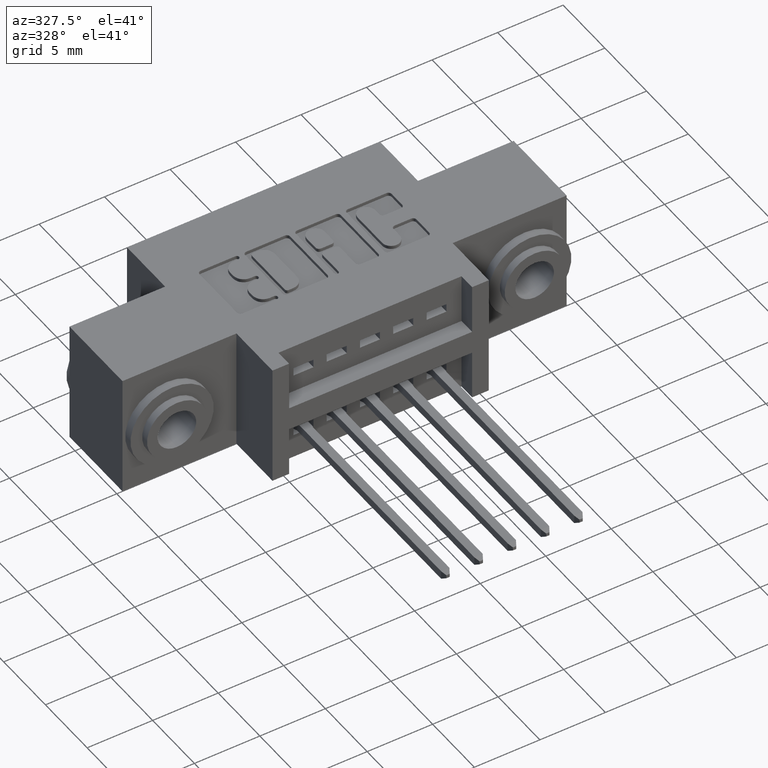
[diagram: clean part render]
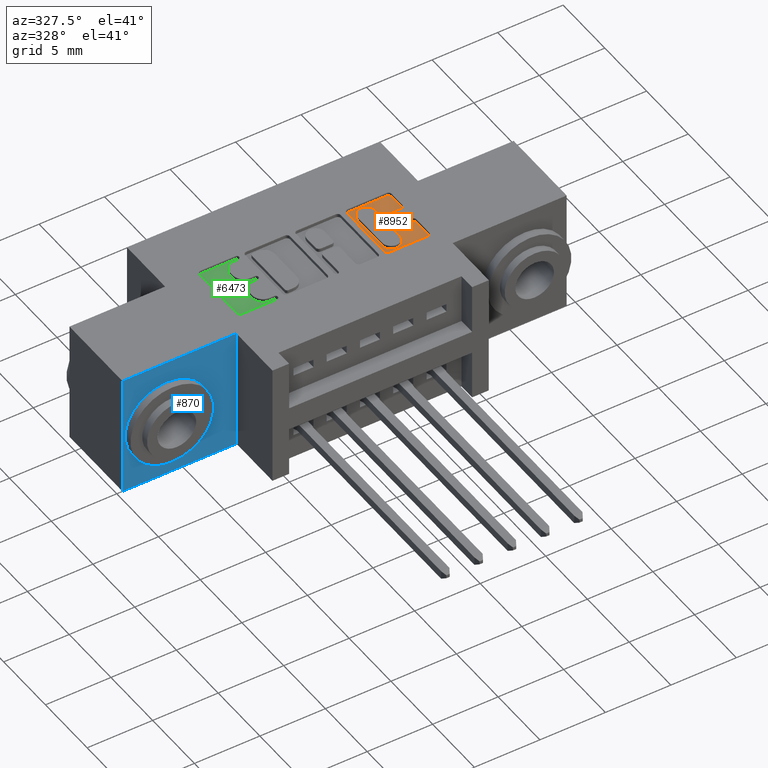
[diagram: same view with three faces highlighted in distinct colors, each labeled with its STEP entity id]
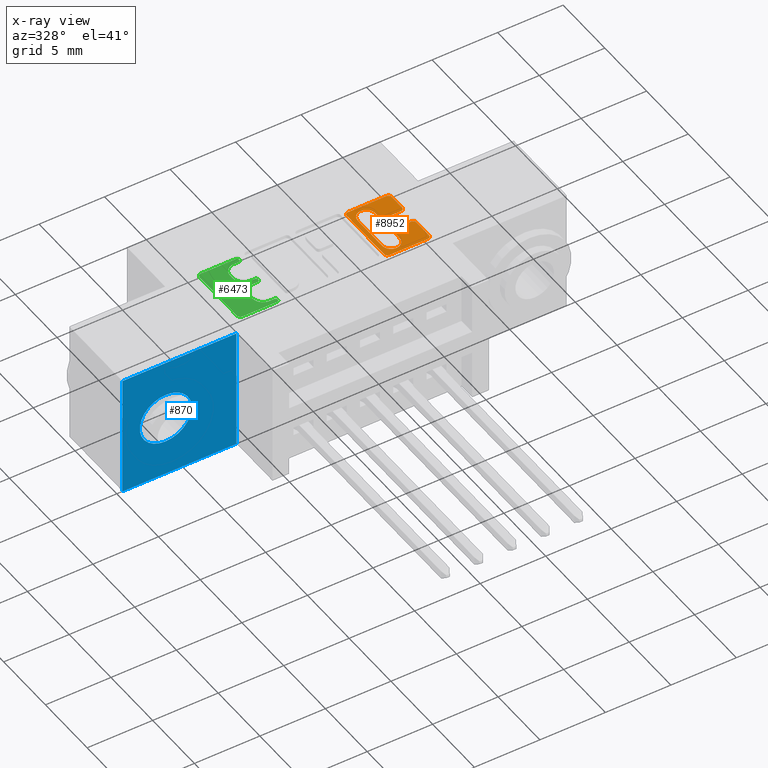
[diagram: x-ray of the same camera — body ghosted, the three highlighted faces saturated]
A machine part, auxiliary view with three faces highlighted in distinct colors.
The next image is the same camera in x-ray (body ghosted, the three faces saturated) — at least one of them is partly hidden behind the body in this view.
Their STEP definitions:

[orange] entity #8952 — the highlighted planar face has unit normal (0, 0, 1).
#35 = VERTEX_POINT ( 'NONE', #166 ) ;
#166 = CARTESIAN_POINT ( 'NONE',  ( 0.9641786319099718800, 0.4133410318341942400, -0.01000000000000000000 ) ) ;
#178 = VERTEX_POINT ( 'NONE', #8386 ) ;
#368 = VECTOR ( 'NONE', #8783, 39.37007874015748100 ) ;
#386 = LINE ( 'NONE', #1317, #841 ) ;
#470 = CARTESIAN_POINT ( 'NONE',  ( 0.0000000000000000000, 0.2268432979619826000, -0.01000000000000000000 ) ) ;
#510 = ORIENTED_EDGE ( 'NONE', *, *, #5298, .F. ) ;
#579 = CARTESIAN_POINT ( 'NONE',  ( 0.9543629617061341100, 0.2366589681657893500, -0.01000000000000000000 ) ) ;
#596 = VERTEX_POINT ( 'NONE', #1628 ) ;
#604 = ORIENTED_EDGE ( 'NONE', *, *, #3182, .T. ) ;
#606 = ORIENTED_EDGE ( 'NONE', *, *, #4198, .T. ) ;
#618 = LINE ( 'NONE', #5213, #4316 ) ;
#698 = CARTESIAN_POINT ( 'NONE',  ( 0.8287223830974583800, 0.2366589681657893500, -0.01000000000000000000 ) ) ;
#790 = DIRECTION ( 'NONE',  ( 1.000000000000000000, 0.0000000000000000000, 0.0000000000000000000 ) ) ;
#841 = VECTOR ( 'NONE', #9435, 39.37007874015748100 ) ;
#904 = VECTOR ( 'NONE', #7022, 39.37007874015748100 ) ;
#954 = DIRECTION ( 'NONE',  ( -0.0000000000000000000, 0.0000000000000000000, 1.000000000000000000 ) ) ;
#1022 = AXIS2_PLACEMENT_3D ( 'NONE', #5051, #8631, #2039 ) ;
#1033 = EDGE_CURVE ( 'NONE', #1476, #8651, #4765, .T. ) ;
#1211 = EDGE_CURVE ( 'NONE', #2462, #5355, #4522, .T. ) ;
#1226 = CARTESIAN_POINT ( 'NONE',  ( 0.8287223830974583800, 0.0000000000000000000, -0.01000000000000000000 ) ) ;
#1309 = CARTESIAN_POINT ( 'NONE',  ( 0.8424643213828182400, 0.0000000000000000000, -0.01000000000000000000 ) ) ;
#1317 = CARTESIAN_POINT ( 'NONE',  ( 0.9641786319099399100, 0.0000000000000000000, -0.01000000000000000000 ) ) ;
#1344 = CARTESIAN_POINT ( 'NONE',  ( 0.8949781569731657400, 0.3637718973050446100, -0.01000000000000000000 ) ) ;
#1354 = AXIS2_PLACEMENT_3D ( 'NONE', #1480, #8855, #5160 ) ;
#1384 = LINE ( 'NONE', #7721, #904 ) ;
#1419 = VECTOR ( 'NONE', #4155, 39.37007874015748100 ) ;
#1476 = VERTEX_POINT ( 'NONE', #8752 ) ;
#1478 = EDGE_CURVE ( 'NONE', #6115, #4722, #1531, .T. ) ;
#1480 = CARTESIAN_POINT ( 'NONE',  ( 0.9047938271769668800, 0.2965345564089689700, -0.01000000000000000000 ) ) ;
#1508 = VECTOR ( 'NONE', #5593, 39.37007874015748100 ) ;
#1531 = LINE ( 'NONE', #1309, #368 ) ;
#1577 = ORIENTED_EDGE ( 'NONE', *, *, #1670, .T. ) ;
#1612 = DIRECTION ( 'NONE',  ( 0.0000000000000000000, -1.000000000000000000, 0.0000000000000000000 ) ) ;
#1627 = LINE ( 'NONE', #4609, #5764 ) ;
#1628 = CARTESIAN_POINT ( 'NONE',  ( 0.9641786319099399100, 0.2965345564089698100, -0.01000000000000000000 ) ) ;
#1631 = DIRECTION ( 'NONE',  ( 1.000000000000000000, 0.0000000000000000000, 0.0000000000000000000 ) ) ;
#1670 = EDGE_CURVE ( 'NONE', #4897, #5240, #4062, .T. ) ;
#1850 = VERTEX_POINT ( 'NONE', #4123 ) ;
#1907 = CARTESIAN_POINT ( 'NONE',  ( 0.9543629617061681900, 0.4231567020380504500, -0.01000000000000000000 ) ) ;
#1973 = PLANE ( 'NONE',  #9153 ) ;
#2037 = DIRECTION ( 'NONE',  ( -0.0000000000000000000, 0.0000000000000000000, 1.000000000000000000 ) ) ;
#2039 = DIRECTION ( 'NONE',  ( 1.000000000000000000, 0.0000000000000000000, 0.0000000000000000000 ) ) ;
#2060 = ORIENTED_EDGE ( 'NONE', *, *, #8715, .T. ) ;
#2070 = DIRECTION ( 'NONE',  ( -0.0000000000000000000, 0.0000000000000000000, 1.000000000000000000 ) ) ;
#2093 = EDGE_CURVE ( 'NONE', #4897, #4722, #9000, .T. ) ;
#2197 = ORIENTED_EDGE ( 'NONE', *, *, #2712, .T. ) ;
#2201 = EDGE_CURVE ( 'NONE', #7310, #35, #1627, .T. ) ;
#2262 = ORIENTED_EDGE ( 'NONE', *, *, #1478, .T. ) ;
#2419 = AXIS2_PLACEMENT_3D ( 'NONE', #8710, #6556, #9507 ) ;
#2462 = VERTEX_POINT ( 'NONE', #698 ) ;
#2623 = DIRECTION ( 'NONE',  ( -0.0000000000000000000, 0.0000000000000000000, 1.000000000000000000 ) ) ;
#2656 = EDGE_CURVE ( 'NONE', #5240, #9212, #8556, .T. ) ;
#2712 = EDGE_CURVE ( 'NONE', #7615, #6848, #5058, .T. ) ;
#2748 = CARTESIAN_POINT ( 'NONE',  ( 0.8949781569731788400, 0.2668421540424524300, -0.01000000000000000000 ) ) ;
#2847 = EDGE_CURVE ( 'NONE', #7460, #9551, #3467, .T. ) ;
#2862 = DIRECTION ( 'NONE',  ( 1.000000000000000000, 0.0000000000000000000, 0.0000000000000000000 ) ) ;
#2883 = ORIENTED_EDGE ( 'NONE', *, *, #2656, .T. ) ;
#3092 = ORIENTED_EDGE ( 'NONE', *, *, #1211, .T. ) ;
#3159 = DIRECTION ( 'NONE',  ( 1.000000000000000000, 0.0000000000000000000, 0.0000000000000000000 ) ) ;
#3182 = EDGE_CURVE ( 'NONE', #1850, #8922, #618, .T. ) ;
#3193 = DIRECTION ( 'NONE',  ( -0.0000000000000000000, 0.0000000000000000000, 1.000000000000000000 ) ) ;
#3223 = DIRECTION ( 'NONE',  ( 1.000000000000000000, 0.0000000000000000000, 0.0000000000000000000 ) ) ;
#3319 = CARTESIAN_POINT ( 'NONE',  ( 0.9543629617061669700, 0.3637718973050380600, -0.01000000000000000000 ) ) ;
#3467 = LINE ( 'NONE', #4909, #1508 ) ;
#3597 = CARTESIAN_POINT ( 'NONE',  ( 0.8287223830974583800, 0.4133410318342095000, -0.01000000000000000000 ) ) ;
#3625 = ORIENTED_EDGE ( 'NONE', *, *, #6750, .T. ) ;
#3758 = AXIS2_PLACEMENT_3D ( 'NONE', #3319, #5491, #3223 ) ;
#3800 = CARTESIAN_POINT ( 'NONE',  ( 0.8949781569731657400, 0.0000000000000000000, -0.01000000000000000000 ) ) ;
#3854 = EDGE_LOOP ( 'NONE', ( #8857, #3625, #4780, #5093, #4702, #6591, #8718, #3092, #8251, #2197, #2060, #606, #604, #7417, #5040, #510, #2262, #6317, #1577, #2883 ) ) ;
#4062 = LINE ( 'NONE', #3800, #8904 ) ;
#4115 = VECTOR ( 'NONE', #5692, 39.37007874015748100 ) ;
#4123 = CARTESIAN_POINT ( 'NONE',  ( 0.9543629617061564200, 0.3063502266127569600, -0.01000000000000000000 ) ) ;
#4155 = DIRECTION ( 'NONE',  ( 0.0000000000000000000, -1.000000000000000000, 0.0000000000000000000 ) ) ;
#4198 = EDGE_CURVE ( 'NONE', #596, #1850, #7160, .T. ) ;
#4316 = VECTOR ( 'NONE', #8128, 39.37007874015748100 ) ;
#4375 = CARTESIAN_POINT ( 'NONE',  ( 0.8424643213828182400, 0.3831578459575290000, -0.01000000000000000000 ) ) ;
#4413 = CARTESIAN_POINT ( 'NONE',  ( 0.8687212391779920400, 0.3831578459575290000, -0.01000000000000000000 ) ) ;
#4491 = AXIS2_PLACEMENT_3D ( 'NONE', #6129, #3193, #3159 ) ;
#4522 = CIRCLE ( 'NONE', #6558, 0.009815670203806754800 ) ;
#4560 = CARTESIAN_POINT ( 'NONE',  ( 0.8385380533012651800, 0.2366589681657893500, -0.01000000000000000000 ) ) ;
#4609 = CARTESIAN_POINT ( 'NONE',  ( 0.9641786319099718800, 0.0000000000000000000, -0.01000000000000000000 ) ) ;
#4682 = LINE ( 'NONE', #470, #4115 ) ;
#4702 = ORIENTED_EDGE ( 'NONE', *, *, #2847, .T. ) ;
#4722 = VERTEX_POINT ( 'NONE', #4375 ) ;
#4738 = CARTESIAN_POINT ( 'NONE',  ( 0.9047938271769668800, 0.3063502266127569600, -0.01000000000000000000 ) ) ;
#4765 = LINE ( 'NONE', #5188, #7881 ) ;
#4780 = ORIENTED_EDGE ( 'NONE', *, *, #2201, .T. ) ;
#4888 = CIRCLE ( 'NONE', #2419, 0.009815670203840084000 ) ;
#4897 = VERTEX_POINT ( 'NONE', #5739 ) ;
#4909 = CARTESIAN_POINT ( 'NONE',  ( 0.0000000000000000000, 0.4231567020380504500, -0.01000000000000000000 ) ) ;
#5040 = ORIENTED_EDGE ( 'NONE', *, *, #1033, .T. ) ;
#5051 = CARTESIAN_POINT ( 'NONE',  ( 0.9047938271769772100, 0.3637718973050446100, -0.01000000000000000000 ) ) ;
#5058 = CIRCLE ( 'NONE', #8926, 0.009815670203806345400 ) ;
#5093 = ORIENTED_EDGE ( 'NONE', *, *, #9067, .T. ) ;
#5151 = EDGE_CURVE ( 'NONE', #9212, #178, #1384, .T. ) ;
#5160 = DIRECTION ( 'NONE',  ( 1.000000000000000000, 0.0000000000000000000, 0.0000000000000000000 ) ) ;
#5188 = CARTESIAN_POINT ( 'NONE',  ( 0.8949781569731788400, 0.0000000000000000000, -0.01000000000000000000 ) ) ;
#5213 = CARTESIAN_POINT ( 'NONE',  ( 0.0000000000000000000, 0.3063502266127569600, -0.01000000000000000000 ) ) ;
#5240 = VERTEX_POINT ( 'NONE', #1344 ) ;
#5251 = CARTESIAN_POINT ( 'NONE',  ( 0.8385380533012991600, 0.4231567020380504500, -0.01000000000000000000 ) ) ;
#5298 = EDGE_CURVE ( 'NONE', #6115, #8651, #8757, .T. ) ;
#5355 = VERTEX_POINT ( 'NONE', #5626 ) ;
#5491 = DIRECTION ( 'NONE',  ( -0.0000000000000000000, 0.0000000000000000000, 1.000000000000000000 ) ) ;
#5546 = EDGE_CURVE ( 'NONE', #8922, #1476, #6419, .T. ) ;
#5593 = DIRECTION ( 'NONE',  ( -1.000000000000000000, 0.0000000000000000000, 0.0000000000000000000 ) ) ;
#5615 = EDGE_CURVE ( 'NONE', #9551, #8735, #8158, .T. ) ;
#5626 = CARTESIAN_POINT ( 'NONE',  ( 0.8385380533012651800, 0.2268432979619826000, -0.01000000000000000000 ) ) ;
#5692 = DIRECTION ( 'NONE',  ( 1.000000000000000000, 0.0000000000000000000, 0.0000000000000000000 ) ) ;
#5737 = DIRECTION ( 'NONE',  ( 1.000000000000000000, 0.0000000000000000000, 0.0000000000000000000 ) ) ;
#5739 = CARTESIAN_POINT ( 'NONE',  ( 0.8949781569731657400, 0.3831578454992593000, -0.01000000000000000000 ) ) ;
#5764 = VECTOR ( 'NONE', #6865, 39.37007874015748100 ) ;
#5780 = LINE ( 'NONE', #1226, #1419 ) ;
#6099 = DIRECTION ( 'NONE',  ( 1.000000000000000000, 0.0000000000000000000, 0.0000000000000000000 ) ) ;
#6115 = VERTEX_POINT ( 'NONE', #7506 ) ;
#6129 = CARTESIAN_POINT ( 'NONE',  ( 0.8687212391779985900, 0.2668421540424524300, -0.01000000000000000000 ) ) ;
#6317 = ORIENTED_EDGE ( 'NONE', *, *, #2093, .F. ) ;
#6321 = EDGE_CURVE ( 'NONE', #8735, #2462, #5780, .T. ) ;
#6376 = FACE_OUTER_BOUND ( 'NONE', #3854, .T. ) ;
#6391 = AXIS2_PLACEMENT_3D ( 'NONE', #7167, #2037, #5737 ) ;
#6419 = CIRCLE ( 'NONE', #1354, 0.009815670203788042300 ) ;
#6477 = CARTESIAN_POINT ( 'NONE',  ( 0.9543629617061341100, 0.2268432979619826000, -0.01000000000000000000 ) ) ;
#6556 = DIRECTION ( 'NONE',  ( -0.0000000000000000000, 0.0000000000000000000, 1.000000000000000000 ) ) ;
#6558 = AXIS2_PLACEMENT_3D ( 'NONE', #4560, #6748, #1631 ) ;
#6564 = CARTESIAN_POINT ( 'NONE',  ( 0.9641786319099718800, 0.3637718973050380600, -0.01000000000000000000 ) ) ;
#6591 = ORIENTED_EDGE ( 'NONE', *, *, #5615, .T. ) ;
#6677 = DIRECTION ( 'NONE',  ( 0.0000000000000000000, -1.000000000000000000, 0.0000000000000000000 ) ) ;
#6748 = DIRECTION ( 'NONE',  ( -0.0000000000000000000, 0.0000000000000000000, 1.000000000000000000 ) ) ;
#6750 = EDGE_CURVE ( 'NONE', #178, #7310, #7131, .T. ) ;
#6785 = CARTESIAN_POINT ( 'NONE',  ( 0.8385380533012991600, 0.4133410318342095000, -0.01000000000000000000 ) ) ;
#6848 = VERTEX_POINT ( 'NONE', #7144 ) ;
#6865 = DIRECTION ( 'NONE',  ( 0.0000000000000000000, 1.000000000000000000, -0.0000000000000000000 ) ) ;
#7016 = AXIS2_PLACEMENT_3D ( 'NONE', #4413, #9543, #790 ) ;
#7022 = DIRECTION ( 'NONE',  ( 1.000000000000000000, 0.0000000000000000000, 0.0000000000000000000 ) ) ;
#7131 = CIRCLE ( 'NONE', #3758, 0.009815670203804980100 ) ;
#7144 = CARTESIAN_POINT ( 'NONE',  ( 0.9641786319099399100, 0.2366589681657823900, -0.01000000000000000000 ) ) ;
#7156 = DIRECTION ( 'NONE',  ( 1.000000000000000000, 0.0000000000000000000, 0.0000000000000000000 ) ) ;
#7160 = CIRCLE ( 'NONE', #6391, 0.009815670203787086500 ) ;
#7167 = CARTESIAN_POINT ( 'NONE',  ( 0.9543629617061528700, 0.2965345564089698100, -0.01000000000000000000 ) ) ;
#7310 = VERTEX_POINT ( 'NONE', #6564 ) ;
#7417 = ORIENTED_EDGE ( 'NONE', *, *, #5546, .T. ) ;
#7455 = AXIS2_PLACEMENT_3D ( 'NONE', #6785, #954, #6099 ) ;
#7460 = VERTEX_POINT ( 'NONE', #1907 ) ;
#7506 = CARTESIAN_POINT ( 'NONE',  ( 0.8424643213828182400, 0.2668421540424524300, -0.01000000000000000000 ) ) ;
#7615 = VERTEX_POINT ( 'NONE', #6477 ) ;
#7721 = CARTESIAN_POINT ( 'NONE',  ( 0.0000000000000000000, 0.3539562271012330300, -0.01000000000000000000 ) ) ;
#7881 = VECTOR ( 'NONE', #6677, 39.37007874015748100 ) ;
#8128 = DIRECTION ( 'NONE',  ( -1.000000000000000000, 0.0000000000000000000, 0.0000000000000000000 ) ) ;
#8158 = CIRCLE ( 'NONE', #7455, 0.009815670203840767500 ) ;
#8222 = EDGE_CURVE ( 'NONE', #5355, #7615, #4682, .T. ) ;
#8251 = ORIENTED_EDGE ( 'NONE', *, *, #8222, .T. ) ;
#8386 = CARTESIAN_POINT ( 'NONE',  ( 0.9543629617061669700, 0.3539562271012330300, -0.01000000000000000000 ) ) ;
#8556 = CIRCLE ( 'NONE', #1022, 0.009815670203811535700 ) ;
#8631 = DIRECTION ( 'NONE',  ( -0.0000000000000000000, 0.0000000000000000000, 1.000000000000000000 ) ) ;
#8651 = VERTEX_POINT ( 'NONE', #2748 ) ;
#8710 = CARTESIAN_POINT ( 'NONE',  ( 0.9543629617061317700, 0.4133410318342103400, -0.01000000000000000000 ) ) ;
#8715 = EDGE_CURVE ( 'NONE', #6848, #596, #386, .T. ) ;
#8718 = ORIENTED_EDGE ( 'NONE', *, *, #6321, .T. ) ;
#8735 = VERTEX_POINT ( 'NONE', #3597 ) ;
#8752 = CARTESIAN_POINT ( 'NONE',  ( 0.8949781569731788400, 0.2965345564089680900, -0.01000000000000000000 ) ) ;
#8757 = CIRCLE ( 'NONE', #4491, 0.02625691779518022500 ) ;
#8783 = DIRECTION ( 'NONE',  ( 0.0000000000000000000, 1.000000000000000000, -0.0000000000000000000 ) ) ;
#8855 = DIRECTION ( 'NONE',  ( -0.0000000000000000000, 0.0000000000000000000, 1.000000000000000000 ) ) ;
#8857 = ORIENTED_EDGE ( 'NONE', *, *, #5151, .T. ) ;
#8891 = CARTESIAN_POINT ( 'NONE',  ( 0.9047938271769772100, 0.3539562271012330300, -0.01000000000000000000 ) ) ;
#8904 = VECTOR ( 'NONE', #1612, 39.37007874015748100 ) ;
#8922 = VERTEX_POINT ( 'NONE', #4738 ) ;
#8926 = AXIS2_PLACEMENT_3D ( 'NONE', #579, #2070, #2862 ) ;
#8952 = ADVANCED_FACE ( 'NONE', ( #6376 ), #1973, .T. ) ;
#9000 = CIRCLE ( 'NONE', #7016, 0.02625691779517367100 ) ;
#9067 = EDGE_CURVE ( 'NONE', #35, #7460, #4888, .T. ) ;
#9153 = AXIS2_PLACEMENT_3D ( 'NONE', #9259, #2623, #7156 ) ;
#9212 = VERTEX_POINT ( 'NONE', #8891 ) ;
#9259 = CARTESIAN_POINT ( 'NONE',  ( 0.0000000000000000000, 0.0000000000000000000, -0.01000000000000000000 ) ) ;
#9435 = DIRECTION ( 'NONE',  ( 0.0000000000000000000, 1.000000000000000000, -0.0000000000000000000 ) ) ;
#9507 = DIRECTION ( 'NONE',  ( 1.000000000000000000, 0.0000000000000000000, 0.0000000000000000000 ) ) ;
#9543 = DIRECTION ( 'NONE',  ( -0.0000000000000000000, 0.0000000000000000000, 1.000000000000000000 ) ) ;
#9551 = VERTEX_POINT ( 'NONE', #5251 ) ;

[blue] entity #870 — the highlighted planar face has unit normal (0, -1, 0).
#394 = CARTESIAN_POINT ( 'NONE',  ( 0.0000000000000000000, 0.1699999999999999800, 0.0000000000000000000 ) ) ;
#481 = ORIENTED_EDGE ( 'NONE', *, *, #5229, .T. ) ;
#491 = VERTEX_POINT ( 'NONE', #9126 ) ;
#499 = ORIENTED_EDGE ( 'NONE', *, *, #6737, .F. ) ;
#590 = VERTEX_POINT ( 'NONE', #1395 ) ;
#599 = FACE_BOUND ( 'NONE', #4951, .T. ) ;
#839 = DIRECTION ( 'NONE',  ( -1.000000000000000000, -0.0000000000000000000, -0.0000000000000000000 ) ) ;
#870 = ADVANCED_FACE ( 'NONE', ( #599, #7991 ), #1125, .T. ) ;
#905 = AXIS2_PLACEMENT_3D ( 'NONE', #2541, #4699, #4729 ) ;
#1125 = PLANE ( 'NONE',  #4902 ) ;
#1158 = VECTOR ( 'NONE', #839, 39.37007874015748100 ) ;
#1390 = ORIENTED_EDGE ( 'NONE', *, *, #2912, .T. ) ;
#1395 = CARTESIAN_POINT ( 'NONE',  ( 0.3424999999999999700, 0.1699999999999999800, 0.0000000000000000000 ) ) ;
#1457 = CARTESIAN_POINT ( 'NONE',  ( 0.3424999999999999700, 0.1699999999999999800, -0.3700000000000000000 ) ) ;
#1469 = VERTEX_POINT ( 'NONE', #4288 ) ;
#1779 = VERTEX_POINT ( 'NONE', #4632 ) ;
#1855 = LINE ( 'NONE', #3599, #1158 ) ;
#1874 = CARTESIAN_POINT ( 'NONE',  ( 0.0000000000000000000, 0.1699999999999999800, -0.3700000000000001600 ) ) ;
#2541 = CARTESIAN_POINT ( 'NONE',  ( 0.1299999999999994200, 0.1699999999999999800, -0.1850000000000000800 ) ) ;
#2776 = EDGE_CURVE ( 'NONE', #4731, #590, #3692, .T. ) ;
#2790 = EDGE_CURVE ( 'NONE', #590, #1469, #1855, .T. ) ;
#2882 = VERTEX_POINT ( 'NONE', #6320 ) ;
#2896 = LINE ( 'NONE', #5514, #8991 ) ;
#2912 = EDGE_CURVE ( 'NONE', #2882, #4731, #2896, .T. ) ;
#2991 = LINE ( 'NONE', #394, #8538 ) ;
#3578 = VECTOR ( 'NONE', #7296, 39.37007874015748100 ) ;
#3599 = CARTESIAN_POINT ( 'NONE',  ( 0.0000000000000000000, 0.1699999999999999800, 0.0000000000000000000 ) ) ;
#3692 = LINE ( 'NONE', #4298, #3578 ) ;
#4136 = CIRCLE ( 'NONE', #905, 0.07800000000000009700 ) ;
#4288 = CARTESIAN_POINT ( 'NONE',  ( 0.0000000000000000000, 0.1699999999999999800, 0.0000000000000000000 ) ) ;
#4298 = CARTESIAN_POINT ( 'NONE',  ( 0.3424999999999999700, 0.1699999999999999800, 0.0000000000000000000 ) ) ;
#4398 = EDGE_LOOP ( 'NONE', ( #481, #1390, #5448, #7859 ) ) ;
#4632 = CARTESIAN_POINT ( 'NONE',  ( 0.1299999999999994200, 0.1699999999999999800, -0.1069999999999999600 ) ) ;
#4699 = DIRECTION ( 'NONE',  ( 0.0000000000000000000, -1.000000000000000000, 0.0000000000000000000 ) ) ;
#4729 = DIRECTION ( 'NONE',  ( 0.0000000000000000000, 0.0000000000000000000, -1.000000000000000000 ) ) ;
#4731 = VERTEX_POINT ( 'NONE', #1457 ) ;
#4902 = AXIS2_PLACEMENT_3D ( 'NONE', #1874, #7803, #8592 ) ;
#4951 = EDGE_LOOP ( 'NONE', ( #499, #6784 ) ) ;
#5043 = EDGE_CURVE ( 'NONE', #491, #1779, #5641, .T. ) ;
#5199 = DIRECTION ( 'NONE',  ( 0.0000000000000000000, -1.000000000000000000, 0.0000000000000000000 ) ) ;
#5229 = EDGE_CURVE ( 'NONE', #1469, #2882, #2991, .T. ) ;
#5448 = ORIENTED_EDGE ( 'NONE', *, *, #2776, .T. ) ;
#5514 = CARTESIAN_POINT ( 'NONE',  ( 0.0000000000000000000, 0.1699999999999999800, -0.3700000000000001600 ) ) ;
#5552 = DIRECTION ( 'NONE',  ( 0.0000000000000000000, 0.0000000000000000000, -1.000000000000000000 ) ) ;
#5641 = CIRCLE ( 'NONE', #7834, 0.07800000000000009700 ) ;
#6320 = CARTESIAN_POINT ( 'NONE',  ( 0.0000000000000000000, 0.1699999999999999800, -0.3700000000000001600 ) ) ;
#6737 = EDGE_CURVE ( 'NONE', #1779, #491, #4136, .T. ) ;
#6784 = ORIENTED_EDGE ( 'NONE', *, *, #5043, .F. ) ;
#7296 = DIRECTION ( 'NONE',  ( -0.0000000000000000000, -0.0000000000000000000, 1.000000000000000000 ) ) ;
#7803 = DIRECTION ( 'NONE',  ( 0.0000000000000000000, -1.000000000000000000, 0.0000000000000000000 ) ) ;
#7834 = AXIS2_PLACEMENT_3D ( 'NONE', #8087, #5199, #8252 ) ;
#7859 = ORIENTED_EDGE ( 'NONE', *, *, #2790, .T. ) ;
#7991 = FACE_OUTER_BOUND ( 'NONE', #4398, .T. ) ;
#8087 = CARTESIAN_POINT ( 'NONE',  ( 0.1299999999999994200, 0.1699999999999999800, -0.1850000000000000800 ) ) ;
#8252 = DIRECTION ( 'NONE',  ( 0.0000000000000000000, 0.0000000000000000000, -1.000000000000000000 ) ) ;
#8538 = VECTOR ( 'NONE', #5552, 39.37007874015748100 ) ;
#8592 = DIRECTION ( 'NONE',  ( 0.0000000000000000000, -0.0000000000000000000, -1.000000000000000000 ) ) ;
#8608 = DIRECTION ( 'NONE',  ( 1.000000000000000000, 0.0000000000000000000, 3.988099260823742800E-016 ) ) ;
#8991 = VECTOR ( 'NONE', #8608, 39.37007874015748100 ) ;
#9126 = CARTESIAN_POINT ( 'NONE',  ( 0.1299999999999994500, 0.1699999999999999800, -0.2630000000000001800 ) ) ;

[green] entity #6473 — the highlighted planar face has unit normal (0, 0, 1).
#86 = ORIENTED_EDGE ( 'NONE', *, *, #4776, .T. ) ;
#125 = CARTESIAN_POINT ( 'NONE',  ( 0.0000000000000000000, 0.3181290308573562200, -0.01000000000000000000 ) ) ;
#224 = VECTOR ( 'NONE', #3803, 39.37007874015748100 ) ;
#231 = DIRECTION ( 'NONE',  ( -0.0000000000000000000, 0.0000000000000000000, 1.000000000000000000 ) ) ;
#240 = CARTESIAN_POINT ( 'NONE',  ( 0.5006336065353511600, 0.4162857328953856700, -0.01000000000000000000 ) ) ;
#242 = EDGE_CURVE ( 'NONE', #2676, #3201, #3518, .T. ) ;
#305 = CIRCLE ( 'NONE', #3520, 0.03141014465221592800 ) ;
#354 = DIRECTION ( 'NONE',  ( -0.0000000000000000000, 0.0000000000000000000, 1.000000000000000000 ) ) ;
#450 = EDGE_CURVE ( 'NONE', #4322, #3538, #8711, .T. ) ;
#464 = AXIS2_PLACEMENT_3D ( 'NONE', #2488, #231, #7632 ) ;
#574 = DIRECTION ( 'NONE',  ( 1.000000000000000000, 0.0000000000000000000, 0.0000000000000000000 ) ) ;
#617 = CARTESIAN_POINT ( 'NONE',  ( 0.5006336065353097500, 0.3250000000000197700, -0.01000000000000000000 ) ) ;
#621 = DIRECTION ( 'NONE',  ( -0.0000000000000000000, 0.0000000000000000000, 1.000000000000000000 ) ) ;
#664 = EDGE_CURVE ( 'NONE', #1195, #6465, #4194, .T. ) ;
#907 = CARTESIAN_POINT ( 'NONE',  ( 0.0000000000000000000, 0.3318709691426832700, -0.01000000000000000000 ) ) ;
#948 = VERTEX_POINT ( 'NONE', #3062 ) ;
#981 = DIRECTION ( 'NONE',  ( -0.0000000000000000000, 0.0000000000000000000, 1.000000000000000000 ) ) ;
#1101 = EDGE_CURVE ( 'NONE', #5544, #2828, #9152, .T. ) ;
#1195 = VERTEX_POINT ( 'NONE', #2306 ) ;
#1251 = DIRECTION ( 'NONE',  ( 1.000000000000000000, 0.0000000000000000000, 0.0000000000000000000 ) ) ;
#1281 = CARTESIAN_POINT ( 'NONE',  ( 0.3865264404161152800, 0.2366589681657893500, -0.01000000000000000000 ) ) ;
#1300 = CARTESIAN_POINT ( 'NONE',  ( -2.860952991549895500E-014, 0.2405852362472500900, -0.01000000000000000000 ) ) ;
#1322 = ORIENTED_EDGE ( 'NONE', *, *, #1800, .T. ) ;
#1388 = CIRCLE ( 'NONE', #4292, 0.006870969142648501700 ) ;
#1389 = VECTOR ( 'NONE', #9262, 39.37007874015748100 ) ;
#1459 = DIRECTION ( 'NONE',  ( -0.0000000000000000000, 0.0000000000000000000, 1.000000000000000000 ) ) ;
#1605 = EDGE_CURVE ( 'NONE', #4322, #7597, #5193, .T. ) ;
#1699 = CIRCLE ( 'NONE', #8268, 0.006870969142648501700 ) ;
#1800 = EDGE_CURVE ( 'NONE', #5982, #5068, #8452, .T. ) ;
#1896 = ORIENTED_EDGE ( 'NONE', *, *, #5873, .T. ) ;
#2033 = CARTESIAN_POINT ( 'NONE',  ( 0.5006336065353511600, 0.4094147637527351100, -0.01000000000000000000 ) ) ;
#2066 = LINE ( 'NONE', #8249, #224 ) ;
#2125 = DIRECTION ( 'NONE',  ( 1.000000000000000000, 7.203446383881649800E-015, 0.0000000000000000000 ) ) ;
#2211 = FACE_OUTER_BOUND ( 'NONE', #4730, .T. ) ;
#2241 = EDGE_CURVE ( 'NONE', #4879, #2676, #9364, .T. ) ;
#2306 = CARTESIAN_POINT ( 'NONE',  ( 0.3963421106199378500, 0.4231567020380321300, -0.01000000000000000000 ) ) ;
#2373 = AXIS2_PLACEMENT_3D ( 'NONE', #7477, #5174, #2978 ) ;
#2391 = ORIENTED_EDGE ( 'NONE', *, *, #4635, .T. ) ;
#2488 = CARTESIAN_POINT ( 'NONE',  ( 0.5006336065353354000, 0.2337142671046473500, -0.01000000000000000000 ) ) ;
#2489 = CARTESIAN_POINT ( 'NONE',  ( 0.0000000000000000000, 0.4231567020380321300, -0.01000000000000000000 ) ) ;
#2507 = VECTOR ( 'NONE', #2125, 39.37007874015748100 ) ;
#2676 = VERTEX_POINT ( 'NONE', #7226 ) ;
#2677 = VECTOR ( 'NONE', #5460, 39.37007874015748100 ) ;
#2679 = CARTESIAN_POINT ( 'NONE',  ( 0.4871370600051252400, 0.3780046191005191900, -0.01000000000000000000 ) ) ;
#2780 = AXIS2_PLACEMENT_3D ( 'NONE', #5036, #621, #6422 ) ;
#2801 = EDGE_CURVE ( 'NONE', #948, #5722, #1388, .T. ) ;
#2810 = CARTESIAN_POINT ( 'NONE',  ( 0.3865264404161152800, 0.4133410318342095000, -0.01000000000000000000 ) ) ;
#2828 = VERTEX_POINT ( 'NONE', #3954 ) ;
#2978 = DIRECTION ( 'NONE',  ( 1.000000000000000000, 0.0000000000000000000, 0.0000000000000000000 ) ) ;
#3002 = ORIENTED_EDGE ( 'NONE', *, *, #1101, .F. ) ;
#3062 = CARTESIAN_POINT ( 'NONE',  ( 0.5075045756779996700, 0.4162857328953856700, -0.01000000000000000000 ) ) ;
#3086 = DIRECTION ( 'NONE',  ( -1.000000000000000000, 0.0000000000000000000, 0.0000000000000000000 ) ) ;
#3116 = CARTESIAN_POINT ( 'NONE',  ( 0.5075045756779733600, 0.3250000000000197700, -0.01000000000000000000 ) ) ;
#3201 = VERTEX_POINT ( 'NONE', #3116 ) ;
#3422 = DIRECTION ( 'NONE',  ( 1.000000000000000000, 0.0000000000000000000, 0.0000000000000000000 ) ) ;
#3505 = ORIENTED_EDGE ( 'NONE', *, *, #242, .T. ) ;
#3518 = CIRCLE ( 'NONE', #4163, 0.006870969142663527000 ) ;
#3520 = AXIS2_PLACEMENT_3D ( 'NONE', #2679, #6337, #3422 ) ;
#3533 = ORIENTED_EDGE ( 'NONE', *, *, #3708, .T. ) ;
#3538 = VERTEX_POINT ( 'NONE', #7662 ) ;
#3598 = VERTEX_POINT ( 'NONE', #8572 ) ;
#3632 = ORIENTED_EDGE ( 'NONE', *, *, #4434, .T. ) ;
#3687 = ORIENTED_EDGE ( 'NONE', *, *, #2241, .T. ) ;
#3708 = EDGE_CURVE ( 'NONE', #6504, #3598, #9254, .T. ) ;
#3764 = DIRECTION ( 'NONE',  ( 1.000000000000000000, 0.0000000000000000000, 0.0000000000000000000 ) ) ;
#3765 = CARTESIAN_POINT ( 'NONE',  ( 0.4557269153529093800, 0.3780046191005191900, -0.01000000000000000000 ) ) ;
#3793 = AXIS2_PLACEMENT_3D ( 'NONE', #6366, #7927, #4221 ) ;
#3797 = CARTESIAN_POINT ( 'NONE',  ( 0.5006336065353097500, 0.3250000000000197700, -0.01000000000000000000 ) ) ;
#3803 = DIRECTION ( 'NONE',  ( 0.0000000000000000000, -1.000000000000000000, 0.0000000000000000000 ) ) ;
#3905 = VERTEX_POINT ( 'NONE', #3765 ) ;
#3916 = LINE ( 'NONE', #2489, #4365 ) ;
#3954 = CARTESIAN_POINT ( 'NONE',  ( 0.4871370600050838300, 0.3318709691426832700, -0.01000000000000000000 ) ) ;
#3974 = DIRECTION ( 'NONE',  ( 0.0000000000000000000, 1.000000000000000000, -0.0000000000000000000 ) ) ;
#4069 = ORIENTED_EDGE ( 'NONE', *, *, #664, .T. ) ;
#4154 = LINE ( 'NONE', #1300, #1389 ) ;
#4163 = AXIS2_PLACEMENT_3D ( 'NONE', #617, #6450, #1251 ) ;
#4191 = AXIS2_PLACEMENT_3D ( 'NONE', #4781, #354, #9236 ) ;
#4194 = CIRCLE ( 'NONE', #2373, 0.009815670203822599700 ) ;
#4218 = ORIENTED_EDGE ( 'NONE', *, *, #2801, .T. ) ;
#4221 = DIRECTION ( 'NONE',  ( 1.000000000000000000, 0.0000000000000000000, 0.0000000000000000000 ) ) ;
#4276 = ORIENTED_EDGE ( 'NONE', *, *, #5473, .T. ) ;
#4292 = AXIS2_PLACEMENT_3D ( 'NONE', #240, #981, #6124 ) ;
#4322 = VERTEX_POINT ( 'NONE', #4747 ) ;
#4365 = VECTOR ( 'NONE', #6206, 39.37007874015748100 ) ;
#4383 = CARTESIAN_POINT ( 'NONE',  ( 0.5006336065353354000, 0.2337142671046473500, -0.01000000000000000000 ) ) ;
#4434 = EDGE_CURVE ( 'NONE', #5087, #2828, #4950, .T. ) ;
#4474 = CARTESIAN_POINT ( 'NONE',  ( 0.5006336065353511600, 0.4162857328953856700, -0.01000000000000000000 ) ) ;
#4600 = CARTESIAN_POINT ( 'NONE',  ( 0.0000000000000000000, 0.4094147637527351100, -0.01000000000000000000 ) ) ;
#4635 = EDGE_CURVE ( 'NONE', #9437, #9565, #9238, .T. ) ;
#4694 = EDGE_CURVE ( 'NONE', #3598, #7597, #4154, .T. ) ;
#4723 = EDGE_CURVE ( 'NONE', #6796, #6504, #7847, .T. ) ;
#4730 = EDGE_LOOP ( 'NONE', ( #8371, #1322, #1896, #4218, #86, #4069, #7202, #2391, #6030, #6420, #3533, #7365, #9380, #6757, #7750, #3687, #3505, #4276, #3632, #3002, #7018 ) ) ;
#4741 = VECTOR ( 'NONE', #5496, 39.37007874015748100 ) ;
#4747 = CARTESIAN_POINT ( 'NONE',  ( 0.4557269153529276400, 0.2719953808994897700, -0.01000000000000000000 ) ) ;
#4776 = EDGE_CURVE ( 'NONE', #5722, #1195, #3916, .T. ) ;
#4781 = CARTESIAN_POINT ( 'NONE',  ( 0.4871370600050838300, 0.2867188862051999700, -0.01000000000000000000 ) ) ;
#4834 = EDGE_CURVE ( 'NONE', #6465, #9437, #2066, .T. ) ;
#4879 = VERTEX_POINT ( 'NONE', #5713 ) ;
#4950 = LINE ( 'NONE', #907, #8775 ) ;
#4953 = EDGE_CURVE ( 'NONE', #5544, #3905, #7248, .T. ) ;
#5036 = CARTESIAN_POINT ( 'NONE',  ( 0.0000000000000000000, 0.0000000000000000000, -0.01000000000000000000 ) ) ;
#5068 = VERTEX_POINT ( 'NONE', #2033 ) ;
#5076 = CARTESIAN_POINT ( 'NONE',  ( -1.634053534412023300E-015, 0.2268432979619814900, -0.01000000000000000000 ) ) ;
#5087 = VERTEX_POINT ( 'NONE', #5237 ) ;
#5174 = DIRECTION ( 'NONE',  ( -0.0000000000000000000, 0.0000000000000000000, 1.000000000000000000 ) ) ;
#5193 = CIRCLE ( 'NONE', #3793, 0.03141014465218178200 ) ;
#5210 = DIRECTION ( 'NONE',  ( 1.000000000000000000, 0.0000000000000000000, 0.0000000000000000000 ) ) ;
#5237 = CARTESIAN_POINT ( 'NONE',  ( 0.5006336065353097500, 0.3318709691426832700, -0.01000000000000000000 ) ) ;
#5284 = AXIS2_PLACEMENT_3D ( 'NONE', #3797, #7462, #8949 ) ;
#5302 = CARTESIAN_POINT ( 'NONE',  ( 0.4871370600051252400, 0.4094147637527351100, -0.01000000000000000000 ) ) ;
#5460 = DIRECTION ( 'NONE',  ( 1.000000000000000000, 0.0000000000000000000, 0.0000000000000000000 ) ) ;
#5473 = EDGE_CURVE ( 'NONE', #3201, #5087, #8046, .T. ) ;
#5477 = AXIS2_PLACEMENT_3D ( 'NONE', #9425, #9362, #574 ) ;
#5496 = DIRECTION ( 'NONE',  ( 1.000000000000000000, 0.0000000000000000000, 0.0000000000000000000 ) ) ;
#5544 = VERTEX_POINT ( 'NONE', #6649 ) ;
#5713 = CARTESIAN_POINT ( 'NONE',  ( 0.4871370600050838300, 0.3181290308573562200, -0.01000000000000000000 ) ) ;
#5722 = VERTEX_POINT ( 'NONE', #6192 ) ;
#5805 = CARTESIAN_POINT ( 'NONE',  ( 0.4871370600050838300, 0.3632811137948577800, -0.01000000000000000000 ) ) ;
#5873 = EDGE_CURVE ( 'NONE', #5068, #948, #1699, .T. ) ;
#5958 = AXIS2_PLACEMENT_3D ( 'NONE', #4383, #8125, #5210 ) ;
#5982 = VERTEX_POINT ( 'NONE', #5302 ) ;
#6030 = ORIENTED_EDGE ( 'NONE', *, *, #7328, .T. ) ;
#6124 = DIRECTION ( 'NONE',  ( 1.000000000000000000, 0.0000000000000000000, 0.0000000000000000000 ) ) ;
#6192 = CARTESIAN_POINT ( 'NONE',  ( 0.5006336065353511600, 0.4231567020380321300, -0.01000000000000000000 ) ) ;
#6206 = DIRECTION ( 'NONE',  ( -1.000000000000000000, 0.0000000000000000000, 0.0000000000000000000 ) ) ;
#6244 = AXIS2_PLACEMENT_3D ( 'NONE', #5805, #8067, #3764 ) ;
#6337 = DIRECTION ( 'NONE',  ( -0.0000000000000000000, 0.0000000000000000000, 1.000000000000000000 ) ) ;
#6366 = CARTESIAN_POINT ( 'NONE',  ( 0.4871370600051094200, 0.2719953808994897700, -0.01000000000000000000 ) ) ;
#6420 = ORIENTED_EDGE ( 'NONE', *, *, #4723, .T. ) ;
#6422 = DIRECTION ( 'NONE',  ( 1.000000000000000000, 0.0000000000000000000, 0.0000000000000000000 ) ) ;
#6450 = DIRECTION ( 'NONE',  ( -0.0000000000000000000, 0.0000000000000000000, 1.000000000000000000 ) ) ;
#6465 = VERTEX_POINT ( 'NONE', #2810 ) ;
#6473 = ADVANCED_FACE ( 'NONE', ( #2211 ), #7267, .T. ) ;
#6504 = VERTEX_POINT ( 'NONE', #9439 ) ;
#6649 = CARTESIAN_POINT ( 'NONE',  ( 0.4557269153529093800, 0.3632811137948577800, -0.01000000000000000000 ) ) ;
#6728 = VECTOR ( 'NONE', #6733, 39.37007874015748100 ) ;
#6733 = DIRECTION ( 'NONE',  ( 0.0000000000000000000, 1.000000000000000000, -0.0000000000000000000 ) ) ;
#6757 = ORIENTED_EDGE ( 'NONE', *, *, #450, .T. ) ;
#6792 = VECTOR ( 'NONE', #3974, 39.37007874015748100 ) ;
#6796 = VERTEX_POINT ( 'NONE', #7020 ) ;
#7018 = ORIENTED_EDGE ( 'NONE', *, *, #4953, .T. ) ;
#7020 = CARTESIAN_POINT ( 'NONE',  ( 0.5006336064154142100, 0.2268432979619851300, -0.01000000000000000000 ) ) ;
#7124 = EDGE_CURVE ( 'NONE', #4879, #3538, #7232, .T. ) ;
#7202 = ORIENTED_EDGE ( 'NONE', *, *, #4834, .T. ) ;
#7226 = CARTESIAN_POINT ( 'NONE',  ( 0.5006336064153886800, 0.3181290308573562200, -0.01000000000000000000 ) ) ;
#7232 = CIRCLE ( 'NONE', #4191, 0.03141014465215624000 ) ;
#7248 = LINE ( 'NONE', #9128, #6792 ) ;
#7267 = PLANE ( 'NONE',  #2780 ) ;
#7328 = EDGE_CURVE ( 'NONE', #9565, #6796, #7808, .T. ) ;
#7365 = ORIENTED_EDGE ( 'NONE', *, *, #4694, .T. ) ;
#7405 = EDGE_CURVE ( 'NONE', #5982, #3905, #305, .T. ) ;
#7462 = DIRECTION ( 'NONE',  ( -0.0000000000000000000, 0.0000000000000000000, 1.000000000000000000 ) ) ;
#7477 = CARTESIAN_POINT ( 'NONE',  ( 0.3963421106199378500, 0.4133410318342095000, -0.01000000000000000000 ) ) ;
#7570 = CARTESIAN_POINT ( 'NONE',  ( 0.4557269153529276400, 0.0000000000000000000, -0.01000000000000000000 ) ) ;
#7597 = VERTEX_POINT ( 'NONE', #9554 ) ;
#7632 = DIRECTION ( 'NONE',  ( 1.000000000000000000, 0.0000000000000000000, 0.0000000000000000000 ) ) ;
#7662 = CARTESIAN_POINT ( 'NONE',  ( 0.4557269153529276400, 0.2867188862051999700, -0.01000000000000000000 ) ) ;
#7750 = ORIENTED_EDGE ( 'NONE', *, *, #7124, .F. ) ;
#7808 = LINE ( 'NONE', #5076, #2507 ) ;
#7847 = CIRCLE ( 'NONE', #5958, 0.006870969142662229500 ) ;
#7927 = DIRECTION ( 'NONE',  ( -0.0000000000000000000, 0.0000000000000000000, 1.000000000000000000 ) ) ;
#8046 = CIRCLE ( 'NONE', #5284, 0.006870969142663527000 ) ;
#8067 = DIRECTION ( 'NONE',  ( -0.0000000000000000000, 0.0000000000000000000, 1.000000000000000000 ) ) ;
#8075 = CARTESIAN_POINT ( 'NONE',  ( 0.3963421106199184200, 0.2268432979619843800, -0.01000000000000000000 ) ) ;
#8125 = DIRECTION ( 'NONE',  ( -0.0000000000000000000, 0.0000000000000000000, 1.000000000000000000 ) ) ;
#8249 = CARTESIAN_POINT ( 'NONE',  ( 0.3865264404161152800, 0.0000000000000000000, -0.01000000000000000000 ) ) ;
#8268 = AXIS2_PLACEMENT_3D ( 'NONE', #4474, #1459, #9541 ) ;
#8371 = ORIENTED_EDGE ( 'NONE', *, *, #7405, .F. ) ;
#8452 = LINE ( 'NONE', #4600, #2677 ) ;
#8572 = CARTESIAN_POINT ( 'NONE',  ( 0.5006336064154142100, 0.2405852362473096300, -0.01000000000000000000 ) ) ;
#8711 = LINE ( 'NONE', #7570, #6728 ) ;
#8775 = VECTOR ( 'NONE', #3086, 39.37007874015748100 ) ;
#8949 = DIRECTION ( 'NONE',  ( 1.000000000000000000, 0.0000000000000000000, 0.0000000000000000000 ) ) ;
#9128 = CARTESIAN_POINT ( 'NONE',  ( 0.4557269153529093800, 0.0000000000000000000, -0.01000000000000000000 ) ) ;
#9152 = CIRCLE ( 'NONE', #6244, 0.03141014465217447500 ) ;
#9236 = DIRECTION ( 'NONE',  ( 1.000000000000000000, 0.0000000000000000000, 0.0000000000000000000 ) ) ;
#9238 = CIRCLE ( 'NONE', #5477, 0.009815670203805868300 ) ;
#9254 = CIRCLE ( 'NONE', #464, 0.006870969142662229500 ) ;
#9262 = DIRECTION ( 'NONE',  ( -1.000000000000000000, -1.189163988687022500E-013, 0.0000000000000000000 ) ) ;
#9362 = DIRECTION ( 'NONE',  ( -0.0000000000000000000, 0.0000000000000000000, 1.000000000000000000 ) ) ;
#9364 = LINE ( 'NONE', #125, #4741 ) ;
#9380 = ORIENTED_EDGE ( 'NONE', *, *, #1605, .F. ) ;
#9425 = CARTESIAN_POINT ( 'NONE',  ( 0.3963421106199220300, 0.2366589681657893500, -0.01000000000000000000 ) ) ;
#9437 = VERTEX_POINT ( 'NONE', #1281 ) ;
#9439 = CARTESIAN_POINT ( 'NONE',  ( 0.5075045756779975600, 0.2337142671046473500, -0.01000000000000000000 ) ) ;
#9541 = DIRECTION ( 'NONE',  ( 1.000000000000000000, 0.0000000000000000000, 0.0000000000000000000 ) ) ;
#9554 = CARTESIAN_POINT ( 'NONE',  ( 0.4871370600051094200, 0.2405852362473080200, -0.01000000000000000000 ) ) ;
#9565 = VERTEX_POINT ( 'NONE', #8075 ) ;